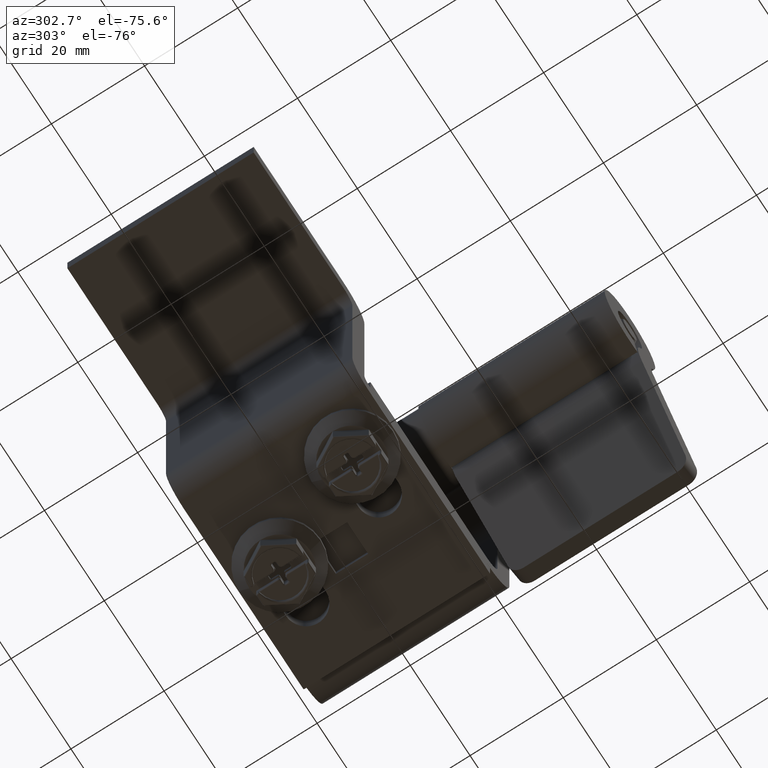
[diagram: clean part render]
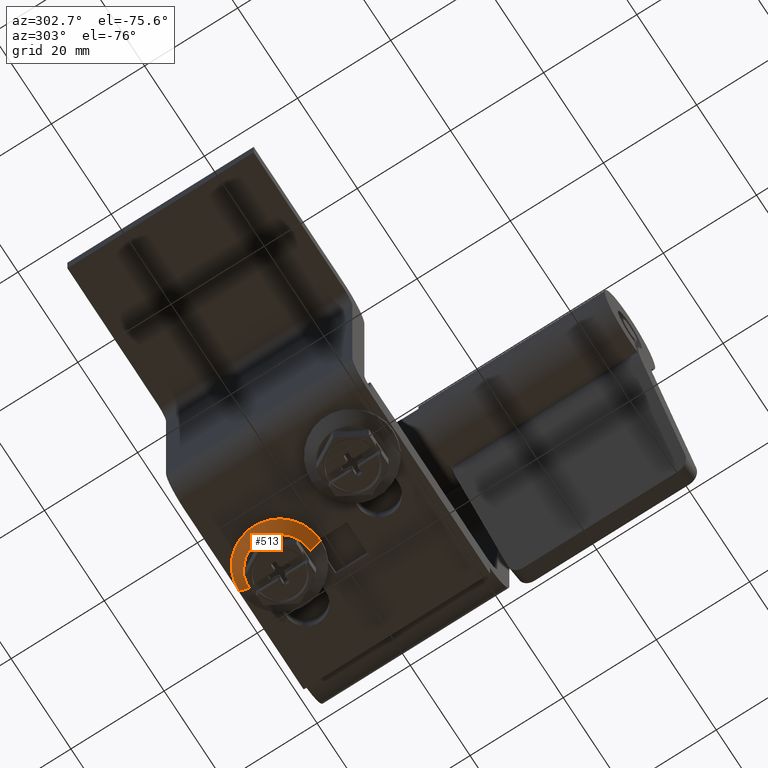
[diagram: same view with one face highlighted and labeled with its STEP entity id]
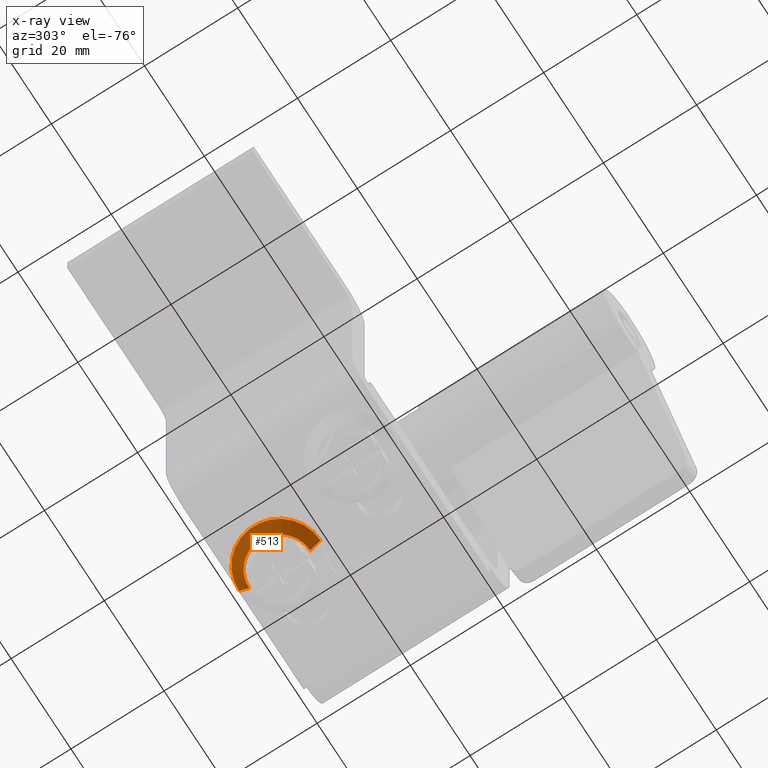
[diagram: x-ray of the same camera — body ghosted, the highlighted face saturated]
A machine part, auxiliary view. The second image highlights one B-rep face of the part: STEP entity #513.
The next image is the same camera in x-ray: the body ghosted, the highlighted face saturated — about 0% of this face is hidden behind the body in this view.
In plain terms, the highlighted face is a freeform B-spline surface patch.
Its self-contained STEP definition (entity closure, byte-faithful):
#513=ADVANCED_FACE('',(#2549),#2548,.T.);
#2548=( BOUNDED_SURFACE() B_SPLINE_SURFACE( 2,1,((#4919,#4920),(#4921,#4922),(#4923,#4924),(#4925,#4926),(#4927,#4928)), .UNSPECIFIED.,.F.,.F.,.F.) B_SPLINE_SURFACE_WITH_KNOTS((3,2,3),(2,2),(0.00000000000E+00,5.00000000000E-01,1.00000000000E+00),(0.00000000000E+00,1.00000000000E+00), .UNSPECIFIED. ) GEOMETRIC_REPRESENTATION_ITEM() RATIONAL_B_SPLINE_SURFACE(((1.00000000000E+00,1.00000000000E+00),(7.07106781187E-01,7.07106781187E-01),(1.00000000000E+00,1.00000000000E+00),(7.07106781187E-01,7.07106781187E-01),(1.00000000000E+00,1.00000000000E+00))) REPRESENTATION_ITEM('') SURFACE() );
#2549=FACE_OUTER_BOUND('',#4929,.T.);
#4919=CARTESIAN_POINT('',(-1.65000002350E+01,4.68500042456E+01,4.24750020175E+01));
#4920=CARTESIAN_POINT('',(-1.65000002350E+01,4.41500041174E+01,4.02500019118E+01));
#4921=CARTESIAN_POINT('',(-9.97499992509E+00,4.68500042456E+01,4.24750020175E+01));
#4922=CARTESIAN_POINT('',(-7.74999981941E+00,4.41500041174E+01,4.02500019118E+01));
#4923=CARTESIAN_POINT('',(-9.97499992509E+00,4.68500042456E+01,4.90000023274E+01));
#4924=CARTESIAN_POINT('',(-7.74999981941E+00,4.41500041174E+01,4.90000023274E+01));
#4925=CARTESIAN_POINT('',(-9.97499992509E+00,4.68500042456E+01,5.55250026373E+01));
#4926=CARTESIAN_POINT('',(-7.74999981941E+00,4.41500041174E+01,5.77500027430E+01));
#4927=CARTESIAN_POINT('',(-1.65000002350E+01,4.68500042456E+01,5.55250026373E+01));
#4928=CARTESIAN_POINT('',(-1.65000002350E+01,4.41500041174E+01,5.77500027430E+01));
#4929=EDGE_LOOP('',(#6720,#6721,#6722,#6723,#6724,#6725,#6726));
#6720=ORIENTED_EDGE('',*,*,#7710,.T.);
#6721=ORIENTED_EDGE('',*,*,#7678,.T.);
#6722=ORIENTED_EDGE('',*,*,#7677,.T.);
#6723=ORIENTED_EDGE('',*,*,#7713,.T.);
#6724=ORIENTED_EDGE('',*,*,#7734,.T.);
#6725=ORIENTED_EDGE('',*,*,#7730,.T.);
#6726=ORIENTED_EDGE('',*,*,#7735,.F.);
#7677=EDGE_CURVE('',#10819,#10832,#10845,.T.);
#7678=EDGE_CURVE('',#10812,#10819,#10851,.T.);
#7710=EDGE_CURVE('',#11047,#10812,#11048,.T.);
#7713=EDGE_CURVE('',#10832,#11060,#11067,.T.);
#7730=EDGE_CURVE('',#11177,#11178,#11179,.T.);
#7734=EDGE_CURVE('',#11060,#11177,#11203,.T.);
#7735=EDGE_CURVE('',#11047,#11178,#11209,.T.);
#10812=VERTEX_POINT('',#15056);
#10819=VERTEX_POINT('',#15060);
#10832=VERTEX_POINT('',#15067);
#10845=CIRCLE('',#15077,6.52500030992E+00);
#10851=CIRCLE('',#15081,6.52500030992E+00);
#11047=VERTEX_POINT('',#15199);
#11048=CIRCLE('',#15203,6.52500030992E+00);
#11060=VERTEX_POINT('',#15208);
#11067=CIRCLE('',#15216,6.52500030992E+00);
#11177=VERTEX_POINT('',#15293);
#11178=VERTEX_POINT('',#15294);
#11179=CIRCLE('',#15298,8.75000041560E+00);
#11203=(BOUNDED_CURVE() B_SPLINE_CURVE(1,(#15307,#15308),.UNSPECIFIED.,.F.,.F.) B_SPLINE_CURVE_WITH_KNOTS((2,2),(0.00000000000E+00,1.00000000000E+00),.UNSPECIFIED.) CURVE() GEOMETRIC_REPRESENTATION_ITEM() RATIONAL_B_SPLINE_CURVE((1.00000000000E+00,1.00000000000E+00)) REPRESENTATION_ITEM('') );
#11209=(BOUNDED_CURVE() B_SPLINE_CURVE(1,(#15309,#15310),.UNSPECIFIED.,.F.,.F.) B_SPLINE_CURVE_WITH_KNOTS((2,2),(0.00000000000E+00,1.00000000000E+00),.UNSPECIFIED.) CURVE() GEOMETRIC_REPRESENTATION_ITEM() RATIONAL_B_SPLINE_CURVE((7.50000000000E-01,7.50000000000E-01)) REPRESENTATION_ITEM('') );
#15056=CARTESIAN_POINT('',(-1.32375000801E+01,4.68500042456E+01,4.33491862993E+01));
#15060=CARTESIAN_POINT('',(-9.97499992509E+00,4.68500042456E+01,4.90000023274E+01));
#15067=CARTESIAN_POINT('',(-1.32375000801E+01,4.68500042456E+01,5.46508183555E+01));
#15074=CARTESIAN_POINT('',(-1.65000002350E+01,4.68500042456E+01,4.90000023274E+01));
#15075=DIRECTION('',(0.00000000000E+00,-1.00000000000E+00,0.00000000000E+00));
#15076=DIRECTION('',(-1.00000000000E+00,-0.00000000000E+00,2.94017669798E-14));
#15077=AXIS2_PLACEMENT_3D('',#15074,#15075,#15076);
#15078=CARTESIAN_POINT('',(-1.65000002350E+01,4.68500042456E+01,4.90000023274E+01));
#15079=DIRECTION('',(0.00000000000E+00,-1.00000000000E+00,0.00000000000E+00));
#15080=DIRECTION('',(-5.00000000000E-01,-0.00000000000E+00,8.66025403784E-01));
#15081=AXIS2_PLACEMENT_3D('',#15078,#15079,#15080);
#15199=CARTESIAN_POINT('',(-1.65000002350E+01,4.68500042456E+01,4.24750020175E+01));
#15200=CARTESIAN_POINT('',(-1.65000002350E+01,4.68500042456E+01,4.90000023274E+01));
#15201=DIRECTION('',(0.00000000000E+00,-1.00000000000E+00,0.00000000000E+00));
#15202=DIRECTION('',(-0.00000000000E+00,-0.00000000000E+00,1.00000000000E+00));
#15203=AXIS2_PLACEMENT_3D('',#15200,#15201,#15202);
#15208=CARTESIAN_POINT('',(-1.65000002350E+01,4.68500042456E+01,5.55250026373E+01));
#15213=CARTESIAN_POINT('',(-1.65000002350E+01,4.68500042456E+01,4.90000023274E+01));
#15214=DIRECTION('',(0.00000000000E+00,-1.00000000000E+00,0.00000000000E+00));
#15215=DIRECTION('',(-5.00000000000E-01,-0.00000000000E+00,-8.66025403785E-01));
#15216=AXIS2_PLACEMENT_3D('',#15213,#15214,#15215);
#15293=CARTESIAN_POINT('',(-1.65000002350E+01,4.41500041174E+01,5.77500027430E+01));
#15294=CARTESIAN_POINT('',(-1.65000002350E+01,4.41500041174E+01,4.02500019118E+01));
#15295=CARTESIAN_POINT('',(-1.65000002350E+01,4.41500041174E+01,4.90000023274E+01));
#15296=DIRECTION('',(0.00000000000E+00,1.00000000000E+00,-0.00000000000E+00));
#15297=DIRECTION('',(-0.00000000000E+00,-0.00000000000E+00,-1.00000000000E+00));
#15298=AXIS2_PLACEMENT_3D('',#15295,#15296,#15297);
#15307=CARTESIAN_POINT('',(-1.65000002350E+01,4.68500042456E+01,5.55250026373E+01));
#15308=CARTESIAN_POINT('',(-1.65000002350E+01,4.41500041174E+01,5.77500027430E+01));
#15309=CARTESIAN_POINT('',(-1.65000002350E+01,4.68500042456E+01,4.24750020175E+01));
#15310=CARTESIAN_POINT('',(-1.65000002350E+01,4.41500041174E+01,4.02500019118E+01));